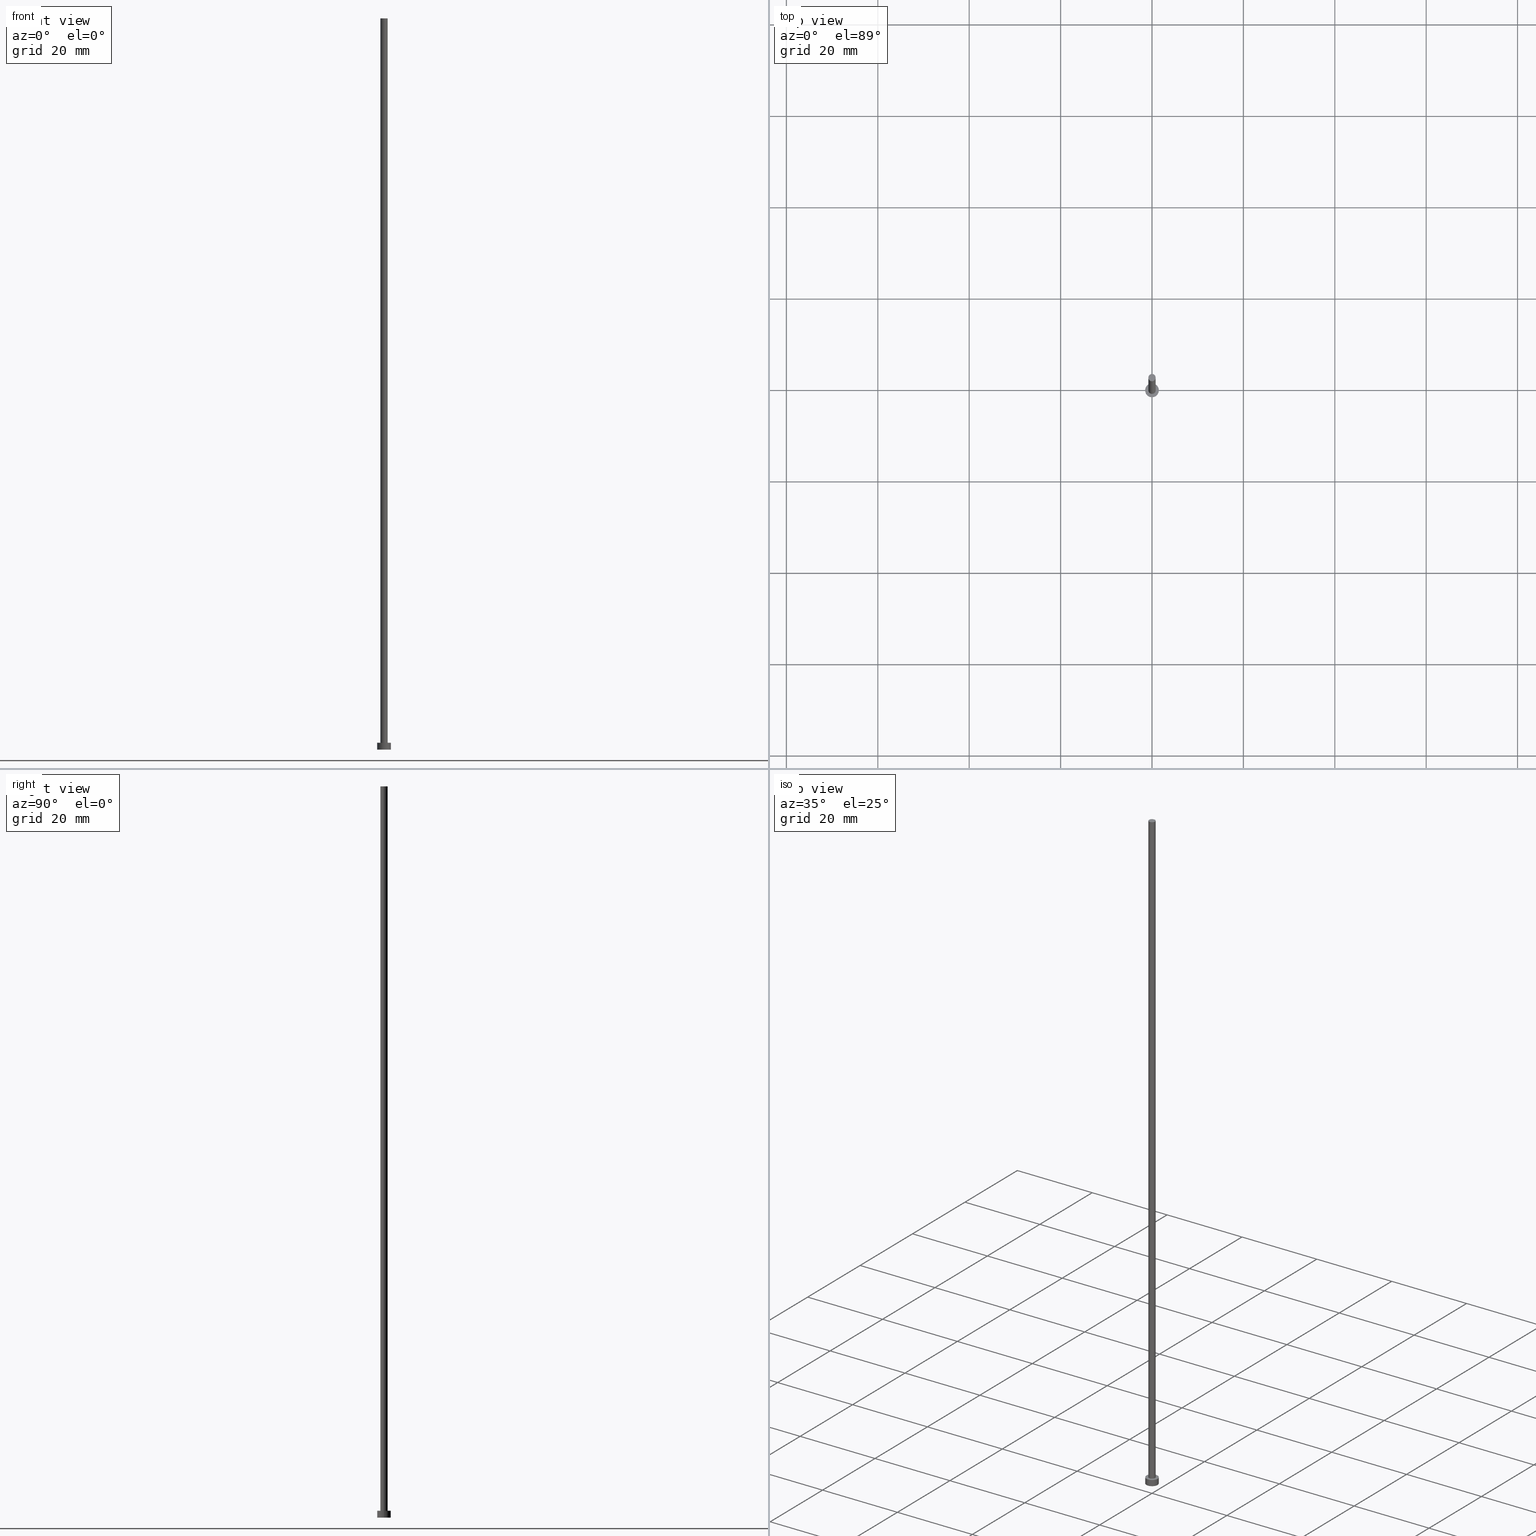
[diagram: canonical four-view strip — front | top / right | iso, engineering-drawing reading convention]
A machine part, canonical four-view strip (front | top / right | iso — engineering-drawing reading convention). The complete STEP part file that produces these views, byte-faithful:
ISO-10303-21;
HEADER;
FILE_DESCRIPTION (( 'STEP AP203' ),
    '1' );
FILE_NAME ('80ba.STEP',
    '2023-02-12T12:55:45',
    ( '' ),
    ( '' ),
    'SwSTEP 2.0',
    'SolidWorks 2019',
    '' );
FILE_SCHEMA (( 'CONFIG_CONTROL_DESIGN' ));
ENDSEC;

DATA;
#1 =( NAMED_UNIT ( * ) SI_UNIT ( $, .STERADIAN. ) SOLID_ANGLE_UNIT ( ) );
#2 = EDGE_CURVE ( 'NONE', #115, #222, #202, .T. ) ;
#3 = CARTESIAN_POINT ( 'NONE',  ( 0.000000000000000000, 0.000000000000000000, 160.0000000000000000 ) ) ;
#4 = AXIS2_PLACEMENT_3D ( 'NONE', #132, #87, #54 ) ;
#5 = PERSON_AND_ORGANIZATION ( #95, #27 ) ;
#6 = VERTEX_POINT ( 'NONE', #34 ) ;
#7 = DIRECTION ( 'NONE',  ( 1.000000000000000000, 0.000000000000000000, 0.000000000000000000 ) ) ;
#8 = FACE_OUTER_BOUND ( 'NONE', #244, .T. ) ;
#9 = APPLICATION_CONTEXT ( 'configuration controlled 3d designs of mechanical parts and assemblies' ) ;
#10 = ORIENTED_EDGE ( 'NONE', *, *, #146, .T. ) ;
#11 = DIRECTION ( 'NONE',  ( 1.000000000000000000, 0.000000000000000000, 0.000000000000000000 ) ) ;
#12 = APPLICATION_PROTOCOL_DEFINITION ( 'international standard', 'config_control_design', 1994, #9 ) ;
#13 = VERTEX_POINT ( 'NONE', #116 ) ;
#14 = ORIENTED_EDGE ( 'NONE', *, *, #118, .T. ) ;
#15 = LINE ( 'NONE', #52, #134 ) ;
#16 = EDGE_CURVE ( 'NONE', #18, #224, #30, .T. ) ;
#17 = LOCAL_TIME ( 13, 55, 45.00000000000000000, #89 ) ;
#18 = VERTEX_POINT ( 'NONE', #189 ) ;
#19 = PERSON_AND_ORGANIZATION ( #95, #27 ) ;
#20 = CARTESIAN_POINT ( 'NONE',  ( -1.500000000000000222, 0.000000000000000000, 0.000000000000000000 ) ) ;
#21 = DIRECTION ( 'NONE',  ( 0.000000000000000000, 0.000000000000000000, 1.000000000000000000 ) ) ;
#22 = DIRECTION ( 'NONE',  ( -1.000000000000000000, 0.000000000000000000, 0.000000000000000000 ) ) ;
#23 = CARTESIAN_POINT ( 'NONE',  ( 0.000000000000000000, 0.000000000000000000, 1.500000000000000000 ) ) ;
#24 = PERSON_AND_ORGANIZATION_ROLE ( 'creator' ) ;
#25 = CC_DESIGN_PERSON_AND_ORGANIZATION_ASSIGNMENT ( #253, #24, ( #153 ) ) ;
#26 = DATE_AND_TIME ( #230, #194 ) ;
#27 = ORGANIZATION ( 'NEUR�EN�', 'NEUR�EN�', '' ) ;
#28 = EDGE_CURVE ( 'NONE', #84, #224, #182, .T. ) ;
#29 = PLANE ( 'NONE',  #113 ) ;
#30 = CIRCLE ( 'NONE', #167, 1.500000000000000222 ) ;
#31 = ORIENTED_EDGE ( 'NONE', *, *, #146, .F. ) ;
#32 = APPROVAL ( #44, 'NEUR�EN�' ) ;
#33 = FACE_OUTER_BOUND ( 'NONE', #94, .T. ) ;
#34 = CARTESIAN_POINT ( 'NONE',  ( 0.8000000000000000444, 9.797174393178826150E-17, 1.500000000000000000 ) ) ;
#35 = ORIENTED_EDGE ( 'NONE', *, *, #80, .T. ) ;
#36 = DIRECTION ( 'NONE',  ( 0.000000000000000000, 0.000000000000000000, 1.000000000000000000 ) ) ;
#37 = PERSON_AND_ORGANIZATION ( #95, #27 ) ;
#38 = AXIS2_PLACEMENT_3D ( 'NONE', #42, #72, #130 ) ;
#39 = CC_DESIGN_PERSON_AND_ORGANIZATION_ASSIGNMENT ( #19, #76, ( #61 ) ) ;
#40 = CARTESIAN_POINT ( 'NONE',  ( 0.000000000000000000, 0.000000000000000000, 1.500000000000000000 ) ) ;
#41 = AXIS2_PLACEMENT_3D ( 'NONE', #50, #92, #169 ) ;
#42 = CARTESIAN_POINT ( 'NONE',  ( 0.000000000000000000, 0.000000000000000000, 0.000000000000000000 ) ) ;
#43 = APPROVAL_PERSON_ORGANIZATION ( #217, #32, #121 ) ;
#44 = APPROVAL_STATUS ( 'not_yet_approved' ) ;
#45 = DIRECTION ( 'NONE',  ( -0.000000000000000000, -0.000000000000000000, -1.000000000000000000 ) ) ;
#46 = AXIS2_PLACEMENT_3D ( 'NONE', #159, #21, #148 ) ;
#47 = LINE ( 'NONE', #221, #79 ) ;
#48 = DIRECTION ( 'NONE',  ( 1.000000000000000000, 0.000000000000000000, -0.000000000000000000 ) ) ;
#49 = CALENDAR_DATE ( 2023, 12, 2 ) ;
#50 = CARTESIAN_POINT ( 'NONE',  ( 0.000000000000000000, 0.000000000000000000, 1.500000000000000000 ) ) ;
#51 = ORIENTED_EDGE ( 'NONE', *, *, #28, .F. ) ;
#52 = CARTESIAN_POINT ( 'NONE',  ( 0.8000000000000000444, 9.797174393178826150E-17, 160.0000000000000000 ) ) ;
#53 = DIRECTION ( 'NONE',  ( -0.000000000000000000, -0.000000000000000000, -1.000000000000000000 ) ) ;
#54 = DIRECTION ( 'NONE',  ( 1.000000000000000000, 0.000000000000000000, 0.000000000000000000 ) ) ;
#55 = CC_DESIGN_APPROVAL ( #185, ( #153 ) ) ;
#56 = CALENDAR_DATE ( 2023, 12, 2 ) ;
#57 = CYLINDRICAL_SURFACE ( 'NONE', #252, 1.500000000000000222 ) ;
#58 = CC_DESIGN_DATE_AND_TIME_ASSIGNMENT ( #175, #77, ( #91 ) ) ;
#59 = PERSON_AND_ORGANIZATION_ROLE ( 'design_supplier' ) ;
#60 = CYLINDRICAL_SURFACE ( 'NONE', #235, 0.8000000000000000444 ) ;
#61 = PRODUCT_DEFINITION_FORMATION_WITH_SPECIFIED_SOURCE ( 'LIBOVOLN�', '', #216, .NOT_KNOWN. ) ;
#62 = DIRECTION ( 'NONE',  ( -1.000000000000000000, 0.000000000000000000, 0.000000000000000000 ) ) ;
#63 = ADVANCED_FACE ( 'NONE', ( #170, #8 ), #135, .T. ) ;
#64 = DIRECTION ( 'NONE',  ( 0.000000000000000000, 0.000000000000000000, 1.000000000000000000 ) ) ;
#65 = AXIS2_PLACEMENT_3D ( 'NONE', #82, #64, #195 ) ;
#66 = ORIENTED_EDGE ( 'NONE', *, *, #118, .F. ) ;
#67 = DIRECTION ( 'NONE',  ( 0.000000000000000000, 0.000000000000000000, 1.000000000000000000 ) ) ;
#68 = ORIENTED_EDGE ( 'NONE', *, *, #172, .T. ) ;
#69 = EDGE_LOOP ( 'NONE', ( #10, #245 ) ) ;
#70 =( LENGTH_UNIT ( ) NAMED_UNIT ( * ) SI_UNIT ( .MILLI., .METRE. ) );
#71 = APPROVAL_DATE_TIME ( #247, #32 ) ;
#72 = DIRECTION ( 'NONE',  ( 0.000000000000000000, 0.000000000000000000, 1.000000000000000000 ) ) ;
#73 = EDGE_CURVE ( 'NONE', #224, #18, #104, .T. ) ;
#74 = CARTESIAN_POINT ( 'NONE',  ( -1.500000000000000222, 0.000000000000000000, 1.500000000000000000 ) ) ;
#75 = APPLICATION_PROTOCOL_DEFINITION ( 'international standard', 'config_control_design', 1994, #241 ) ;
#76 = PERSON_AND_ORGANIZATION_ROLE ( 'creator' ) ;
#77 = DATE_TIME_ROLE ( 'classification_date' ) ;
#78 = AXIS2_PLACEMENT_3D ( 'NONE', #127, #147, #11 ) ;
#79 = VECTOR ( 'NONE', #238, 1000.000000000000000 ) ;
#80 = EDGE_CURVE ( 'NONE', #84, #204, #229, .T. ) ;
#81 = ORIENTED_EDGE ( 'NONE', *, *, #190, .T. ) ;
#82 = CARTESIAN_POINT ( 'NONE',  ( 0.000000000000000000, 0.000000000000000000, 1.500000000000000000 ) ) ;
#83 = CARTESIAN_POINT ( 'NONE',  ( 0.000000000000000000, 0.000000000000000000, 0.000000000000000000 ) ) ;
#84 = VERTEX_POINT ( 'NONE', #246 ) ;
#85 = ORIENTED_EDGE ( 'NONE', *, *, #73, .T. ) ;
#86 = ADVANCED_FACE ( 'NONE', ( #133 ), #57, .T. ) ;
#87 = DIRECTION ( 'NONE',  ( 0.000000000000000000, 0.000000000000000000, 1.000000000000000000 ) ) ;
#88 = EDGE_LOOP ( 'NONE', ( #126, #227 ) ) ;
#89 = COORDINATED_UNIVERSAL_TIME_OFFSET ( 1, 0, .AHEAD. ) ;
#90 = AXIS2_PLACEMENT_3D ( 'NONE', #83, #99, #163 ) ;
#91 = SECURITY_CLASSIFICATION ( '', '', #109 ) ;
#92 = DIRECTION ( 'NONE',  ( 0.000000000000000000, 0.000000000000000000, 1.000000000000000000 ) ) ;
#93 = ADVANCED_FACE ( 'NONE', ( #173 ), #193, .T. ) ;
#94 = EDGE_LOOP ( 'NONE', ( #206, #162, #14, #183 ) ) ;
#95 = PERSON ( 'NEUR�EN�', 'NEUR�EN�', 'NEUR�EN�', ('NEUR�EN�'), ('NEUR�EN�'), ('NEUR�EN�') ) ;
#96 =( NAMED_UNIT ( * ) PLANE_ANGLE_UNIT ( ) SI_UNIT ( $, .RADIAN. ) );
#97 = EDGE_LOOP ( 'NONE', ( #150, #31, #68, #203 ) ) ;
#98 = PERSON_AND_ORGANIZATION ( #95, #27 ) ;
#99 = DIRECTION ( 'NONE',  ( 0.000000000000000000, 0.000000000000000000, 1.000000000000000000 ) ) ;
#100 = CIRCLE ( 'NONE', #128, 0.8000000000000000444 ) ;
#101 = UNCERTAINTY_MEASURE_WITH_UNIT (LENGTH_MEASURE( 1.000000000000000082E-05 ), #70, 'distance_accuracy_value', 'NONE');
#102 = DIRECTION ( 'NONE',  ( -0.000000000000000000, -0.000000000000000000, -1.000000000000000000 ) ) ;
#103 = DATE_AND_TIME ( #56, #248 ) ;
#104 = CIRCLE ( 'NONE', #90, 1.500000000000000222 ) ;
#105 = ADVANCED_FACE ( 'NONE', ( #158 ), #29, .T. ) ;
#106 = AXIS2_PLACEMENT_3D ( 'NONE', #178, #198, #110 ) ;
#107 = CALENDAR_DATE ( 2023, 12, 2 ) ;
#108 = FACE_OUTER_BOUND ( 'NONE', #88, .T. ) ;
#109 = SECURITY_CLASSIFICATION_LEVEL ( 'unclassified' ) ;
#110 = DIRECTION ( 'NONE',  ( 1.000000000000000000, 0.000000000000000000, -0.000000000000000000 ) ) ;
#111 = CARTESIAN_POINT ( 'NONE',  ( 0.8000000000000000444, 9.797174393178826150E-17, 160.0000000000000000 ) ) ;
#112 = CYLINDRICAL_SURFACE ( 'NONE', #208, 0.8000000000000000444 ) ;
#113 = AXIS2_PLACEMENT_3D ( 'NONE', #3, #243, #48 ) ;
#114 =( GEOMETRIC_REPRESENTATION_CONTEXT ( 3 ) GLOBAL_UNCERTAINTY_ASSIGNED_CONTEXT ( ( #101 ) ) GLOBAL_UNIT_ASSIGNED_CONTEXT ( ( #70, #96, #1 ) ) REPRESENTATION_CONTEXT ( 'NONE', 'WORKASPACE' ) );
#115 = VERTEX_POINT ( 'NONE', #111 ) ;
#116 = CARTESIAN_POINT ( 'NONE',  ( -0.8000000000000000444, 0.000000000000000000, 1.500000000000000000 ) ) ;
#117 = ORIENTED_EDGE ( 'NONE', *, *, #190, .F. ) ;
#118 = EDGE_CURVE ( 'NONE', #6, #13, #188, .T. ) ;
#119 = DIRECTION ( 'NONE',  ( -0.000000000000000000, -0.000000000000000000, -1.000000000000000000 ) ) ;
#120 = COORDINATED_UNIVERSAL_TIME_OFFSET ( 1, 0, .AHEAD. ) ;
#121 = APPROVAL_ROLE ( '' ) ;
#122 = DIRECTION ( 'NONE',  ( -0.000000000000000000, -0.000000000000000000, -1.000000000000000000 ) ) ;
#123 = FACE_OUTER_BOUND ( 'NONE', #97, .T. ) ;
#124 = LOCAL_TIME ( 13, 55, 45.00000000000000000, #120 ) ;
#125 = EDGE_LOOP ( 'NONE', ( #117, #242, #180, #51 ) ) ;
#126 = ORIENTED_EDGE ( 'NONE', *, *, #73, .F. ) ;
#127 = CARTESIAN_POINT ( 'NONE',  ( 0.000000000000000000, 0.000000000000000000, 1.500000000000000000 ) ) ;
#128 = AXIS2_PLACEMENT_3D ( 'NONE', #144, #181, #7 ) ;
#129 = ORIENTED_EDGE ( 'NONE', *, *, #237, .F. ) ;
#130 = DIRECTION ( 'NONE',  ( 1.000000000000000000, 0.000000000000000000, 0.000000000000000000 ) ) ;
#131 = CC_DESIGN_PERSON_AND_ORGANIZATION_ASSIGNMENT ( #5, #141, ( #91 ) ) ;
#132 = CARTESIAN_POINT ( 'NONE',  ( 0.000000000000000000, 0.000000000000000000, 1.500000000000000000 ) ) ;
#133 = FACE_OUTER_BOUND ( 'NONE', #125, .T. ) ;
#134 = VECTOR ( 'NONE', #228, 1000.000000000000000 ) ;
#135 = PLANE ( 'NONE',  #46 ) ;
#136 = CC_DESIGN_DATE_AND_TIME_ASSIGNMENT ( #26, #209, ( #153 ) ) ;
#137 = CALENDAR_DATE ( 2023, 12, 2 ) ;
#138 = COORDINATED_UNIVERSAL_TIME_OFFSET ( 1, 0, .AHEAD. ) ;
#139 = AXIS2_PLACEMENT_3D ( 'NONE', #165, #67, #226 ) ;
#140 = APPROVAL_PERSON_ORGANIZATION ( #191, #185, #233 ) ;
#141 = PERSON_AND_ORGANIZATION_ROLE ( 'classification_officer' ) ;
#142 = AXIS2_PLACEMENT_3D ( 'NONE', #40, #119, #251 ) ;
#143 = CARTESIAN_POINT ( 'NONE',  ( 0.000000000000000000, 0.000000000000000000, 160.0000000000000000 ) ) ;
#144 = CARTESIAN_POINT ( 'NONE',  ( 0.000000000000000000, 0.000000000000000000, 160.0000000000000000 ) ) ;
#145 = CIRCLE ( 'NONE', #65, 1.500000000000000222 ) ;
#146 = EDGE_CURVE ( 'NONE', #222, #115, #100, .T. ) ;
#147 = DIRECTION ( 'NONE',  ( 0.000000000000000000, 0.000000000000000000, 1.000000000000000000 ) ) ;
#148 = DIRECTION ( 'NONE',  ( 1.000000000000000000, 0.000000000000000000, -0.000000000000000000 ) ) ;
#149 = MECHANICAL_CONTEXT ( 'NONE', #9, 'mechanical' ) ;
#150 = ORIENTED_EDGE ( 'NONE', *, *, #232, .F. ) ;
#151 = ORIENTED_EDGE ( 'NONE', *, *, #176, .F. ) ;
#152 = CLOSED_SHELL ( 'NONE', ( #210, #86, #93, #63, #219, #207, #105 ) ) ;
#153 = PRODUCT_DEFINITION ( 'NEZN�M�', '', #61, #212 ) ;
#154 = PERSON_AND_ORGANIZATION_ROLE ( 'design_owner' ) ;
#155 = CC_DESIGN_APPROVAL ( #32, ( #91 ) ) ;
#156 = LINE ( 'NONE', #218, #255 ) ;
#157 = CARTESIAN_POINT ( 'NONE',  ( 1.500000000000000222, 1.836970198721030181E-16, 1.500000000000000000 ) ) ;
#158 = FACE_OUTER_BOUND ( 'NONE', #69, .T. ) ;
#159 = CARTESIAN_POINT ( 'NONE',  ( 0.000000000000000000, 0.000000000000000000, 1.500000000000000000 ) ) ;
#160 = MANIFOLD_SOLID_BREP ( 'P�idat vysunut�m3', #152 ) ;
#161 = VECTOR ( 'NONE', #53, 1000.000000000000000 ) ;
#162 = ORIENTED_EDGE ( 'NONE', *, *, #232, .T. ) ;
#163 = DIRECTION ( 'NONE',  ( 1.000000000000000000, 0.000000000000000000, 0.000000000000000000 ) ) ;
#164 = LOCAL_TIME ( 13, 55, 45.00000000000000000, #138 ) ;
#165 = CARTESIAN_POINT ( 'NONE',  ( 0.000000000000000000, 0.000000000000000000, 160.0000000000000000 ) ) ;
#166 = APPROVAL ( #192, 'NEUR�EN�' ) ;
#167 = AXIS2_PLACEMENT_3D ( 'NONE', #187, #36, #196 ) ;
#168 = APPROVAL_PERSON_ORGANIZATION ( #37, #166, #234 ) ;
#169 = DIRECTION ( 'NONE',  ( 1.000000000000000000, 0.000000000000000000, 0.000000000000000000 ) ) ;
#170 = FACE_BOUND ( 'NONE', #205, .T. ) ;
#171 = CC_DESIGN_PERSON_AND_ORGANIZATION_ASSIGNMENT ( #249, #154, ( #216 ) ) ;
#172 = EDGE_CURVE ( 'NONE', #222, #13, #156, .T. ) ;
#173 = FACE_OUTER_BOUND ( 'NONE', #186, .T. ) ;
#174 = COORDINATED_UNIVERSAL_TIME_OFFSET ( 1, 0, .AHEAD. ) ;
#175 = DATE_AND_TIME ( #107, #124 ) ;
#176 = EDGE_CURVE ( 'NONE', #204, #18, #47, .T. ) ;
#177 = PRODUCT_DEFINITION_SHAPE ( 'NONE', 'NONE',  #153 ) ;
#178 = CARTESIAN_POINT ( 'NONE',  ( 0.000000000000000000, 0.000000000000000000, 0.000000000000000000 ) ) ;
#179 = CARTESIAN_POINT ( 'NONE',  ( -0.8000000000000000444, 0.000000000000000000, 160.0000000000000000 ) ) ;
#180 = ORIENTED_EDGE ( 'NONE', *, *, #16, .T. ) ;
#181 = DIRECTION ( 'NONE',  ( 0.000000000000000000, 0.000000000000000000, 1.000000000000000000 ) ) ;
#182 = LINE ( 'NONE', #74, #161 ) ;
#183 = ORIENTED_EDGE ( 'NONE', *, *, #172, .F. ) ;
#184 = ORIENTED_EDGE ( 'NONE', *, *, #80, .F. ) ;
#185 = APPROVAL ( #214, 'NEUR�EN�' ) ;
#186 = EDGE_LOOP ( 'NONE', ( #151, #184, #200, #85 ) ) ;
#187 = CARTESIAN_POINT ( 'NONE',  ( 0.000000000000000000, 0.000000000000000000, 0.000000000000000000 ) ) ;
#188 = CIRCLE ( 'NONE', #78, 0.8000000000000000444 ) ;
#189 = CARTESIAN_POINT ( 'NONE',  ( 1.500000000000000222, 1.836970198721030181E-16, 0.000000000000000000 ) ) ;
#190 = EDGE_CURVE ( 'NONE', #204, #84, #145, .T. ) ;
#191 = PERSON_AND_ORGANIZATION ( #95, #27 ) ;
#192 = APPROVAL_STATUS ( 'not_yet_approved' ) ;
#193 = CYLINDRICAL_SURFACE ( 'NONE', #142, 1.500000000000000222 ) ;
#194 = LOCAL_TIME ( 13, 55, 45.00000000000000000, #215 ) ;
#195 = DIRECTION ( 'NONE',  ( 1.000000000000000000, 0.000000000000000000, 0.000000000000000000 ) ) ;
#196 = DIRECTION ( 'NONE',  ( 1.000000000000000000, 0.000000000000000000, 0.000000000000000000 ) ) ;
#197 = DIRECTION ( 'NONE',  ( -1.000000000000000000, 0.000000000000000000, 0.000000000000000000 ) ) ;
#198 = DIRECTION ( 'NONE',  ( 0.000000000000000000, 0.000000000000000000, 1.000000000000000000 ) ) ;
#199 = CC_DESIGN_APPROVAL ( #166, ( #61 ) ) ;
#200 = ORIENTED_EDGE ( 'NONE', *, *, #28, .T. ) ;
#201 = SHAPE_DEFINITION_REPRESENTATION ( #177, #220 ) ;
#202 = CIRCLE ( 'NONE', #139, 0.8000000000000000444 ) ;
#203 = ORIENTED_EDGE ( 'NONE', *, *, #237, .T. ) ;
#204 = VERTEX_POINT ( 'NONE', #157 ) ;
#205 = EDGE_LOOP ( 'NONE', ( #129, #66 ) ) ;
#206 = ORIENTED_EDGE ( 'NONE', *, *, #2, .F. ) ;
#207 = ADVANCED_FACE ( 'NONE', ( #123 ), #60, .T. ) ;
#208 = AXIS2_PLACEMENT_3D ( 'NONE', #143, #122, #197 ) ;
#209 = DATE_TIME_ROLE ( 'creation_date' ) ;
#210 = ADVANCED_FACE ( 'NONE', ( #33 ), #112, .T. ) ;
#211 = DATE_AND_TIME ( #137, #164 ) ;
#212 = DESIGN_CONTEXT ( 'detailed design', #241, 'design' ) ;
#213 = CIRCLE ( 'NONE', #4, 0.8000000000000000444 ) ;
#214 = APPROVAL_STATUS ( 'not_yet_approved' ) ;
#215 = COORDINATED_UNIVERSAL_TIME_OFFSET ( 1, 0, .AHEAD. ) ;
#216 = PRODUCT ( '80ba', '80ba', '', ( #149 ) ) ;
#217 = PERSON_AND_ORGANIZATION ( #95, #27 ) ;
#218 = CARTESIAN_POINT ( 'NONE',  ( -0.8000000000000000444, 0.000000000000000000, 160.0000000000000000 ) ) ;
#219 = ADVANCED_FACE ( 'NONE', ( #108 ), #240, .F. ) ;
#220 = ADVANCED_BREP_SHAPE_REPRESENTATION ( '80ba', ( #160, #38 ), #114 ) ;
#221 = CARTESIAN_POINT ( 'NONE',  ( 1.500000000000000222, 1.836970198721030181E-16, 1.500000000000000000 ) ) ;
#222 = VERTEX_POINT ( 'NONE', #179 ) ;
#223 = DIRECTION ( 'NONE',  ( -0.000000000000000000, -0.000000000000000000, -1.000000000000000000 ) ) ;
#224 = VERTEX_POINT ( 'NONE', #20 ) ;
#225 = PRODUCT_RELATED_PRODUCT_CATEGORY ( 'detail', '', ( #216 ) ) ;
#226 = DIRECTION ( 'NONE',  ( 1.000000000000000000, 0.000000000000000000, 0.000000000000000000 ) ) ;
#227 = ORIENTED_EDGE ( 'NONE', *, *, #16, .F. ) ;
#228 = DIRECTION ( 'NONE',  ( -0.000000000000000000, -0.000000000000000000, -1.000000000000000000 ) ) ;
#229 = CIRCLE ( 'NONE', #41, 1.500000000000000222 ) ;
#230 = CALENDAR_DATE ( 2023, 12, 2 ) ;
#231 = CC_DESIGN_SECURITY_CLASSIFICATION ( #91, ( #61 ) ) ;
#232 = EDGE_CURVE ( 'NONE', #115, #6, #15, .T. ) ;
#233 = APPROVAL_ROLE ( '' ) ;
#234 = APPROVAL_ROLE ( '' ) ;
#235 = AXIS2_PLACEMENT_3D ( 'NONE', #239, #223, #62 ) ;
#236 = APPROVAL_DATE_TIME ( #211, #185 ) ;
#237 = EDGE_CURVE ( 'NONE', #13, #6, #213, .T. ) ;
#238 = DIRECTION ( 'NONE',  ( -0.000000000000000000, -0.000000000000000000, -1.000000000000000000 ) ) ;
#239 = CARTESIAN_POINT ( 'NONE',  ( 0.000000000000000000, 0.000000000000000000, 160.0000000000000000 ) ) ;
#240 = PLANE ( 'NONE',  #106 ) ;
#241 = APPLICATION_CONTEXT ( 'configuration controlled 3d designs of mechanical parts and assemblies' ) ;
#242 = ORIENTED_EDGE ( 'NONE', *, *, #176, .T. ) ;
#243 = DIRECTION ( 'NONE',  ( 0.000000000000000000, 0.000000000000000000, 1.000000000000000000 ) ) ;
#244 = EDGE_LOOP ( 'NONE', ( #35, #81 ) ) ;
#245 = ORIENTED_EDGE ( 'NONE', *, *, #2, .T. ) ;
#246 = CARTESIAN_POINT ( 'NONE',  ( -1.500000000000000222, 0.000000000000000000, 1.500000000000000000 ) ) ;
#247 = DATE_AND_TIME ( #49, #17 ) ;
#248 = LOCAL_TIME ( 13, 55, 45.00000000000000000, #174 ) ;
#249 = PERSON_AND_ORGANIZATION ( #95, #27 ) ;
#250 = APPROVAL_DATE_TIME ( #103, #166 ) ;
#251 = DIRECTION ( 'NONE',  ( -1.000000000000000000, 0.000000000000000000, 0.000000000000000000 ) ) ;
#252 = AXIS2_PLACEMENT_3D ( 'NONE', #23, #102, #22 ) ;
#253 = PERSON_AND_ORGANIZATION ( #95, #27 ) ;
#254 = CC_DESIGN_PERSON_AND_ORGANIZATION_ASSIGNMENT ( #98, #59, ( #61 ) ) ;
#255 = VECTOR ( 'NONE', #45, 1000.000000000000000 ) ;
ENDSEC;
END-ISO-10303-21;
